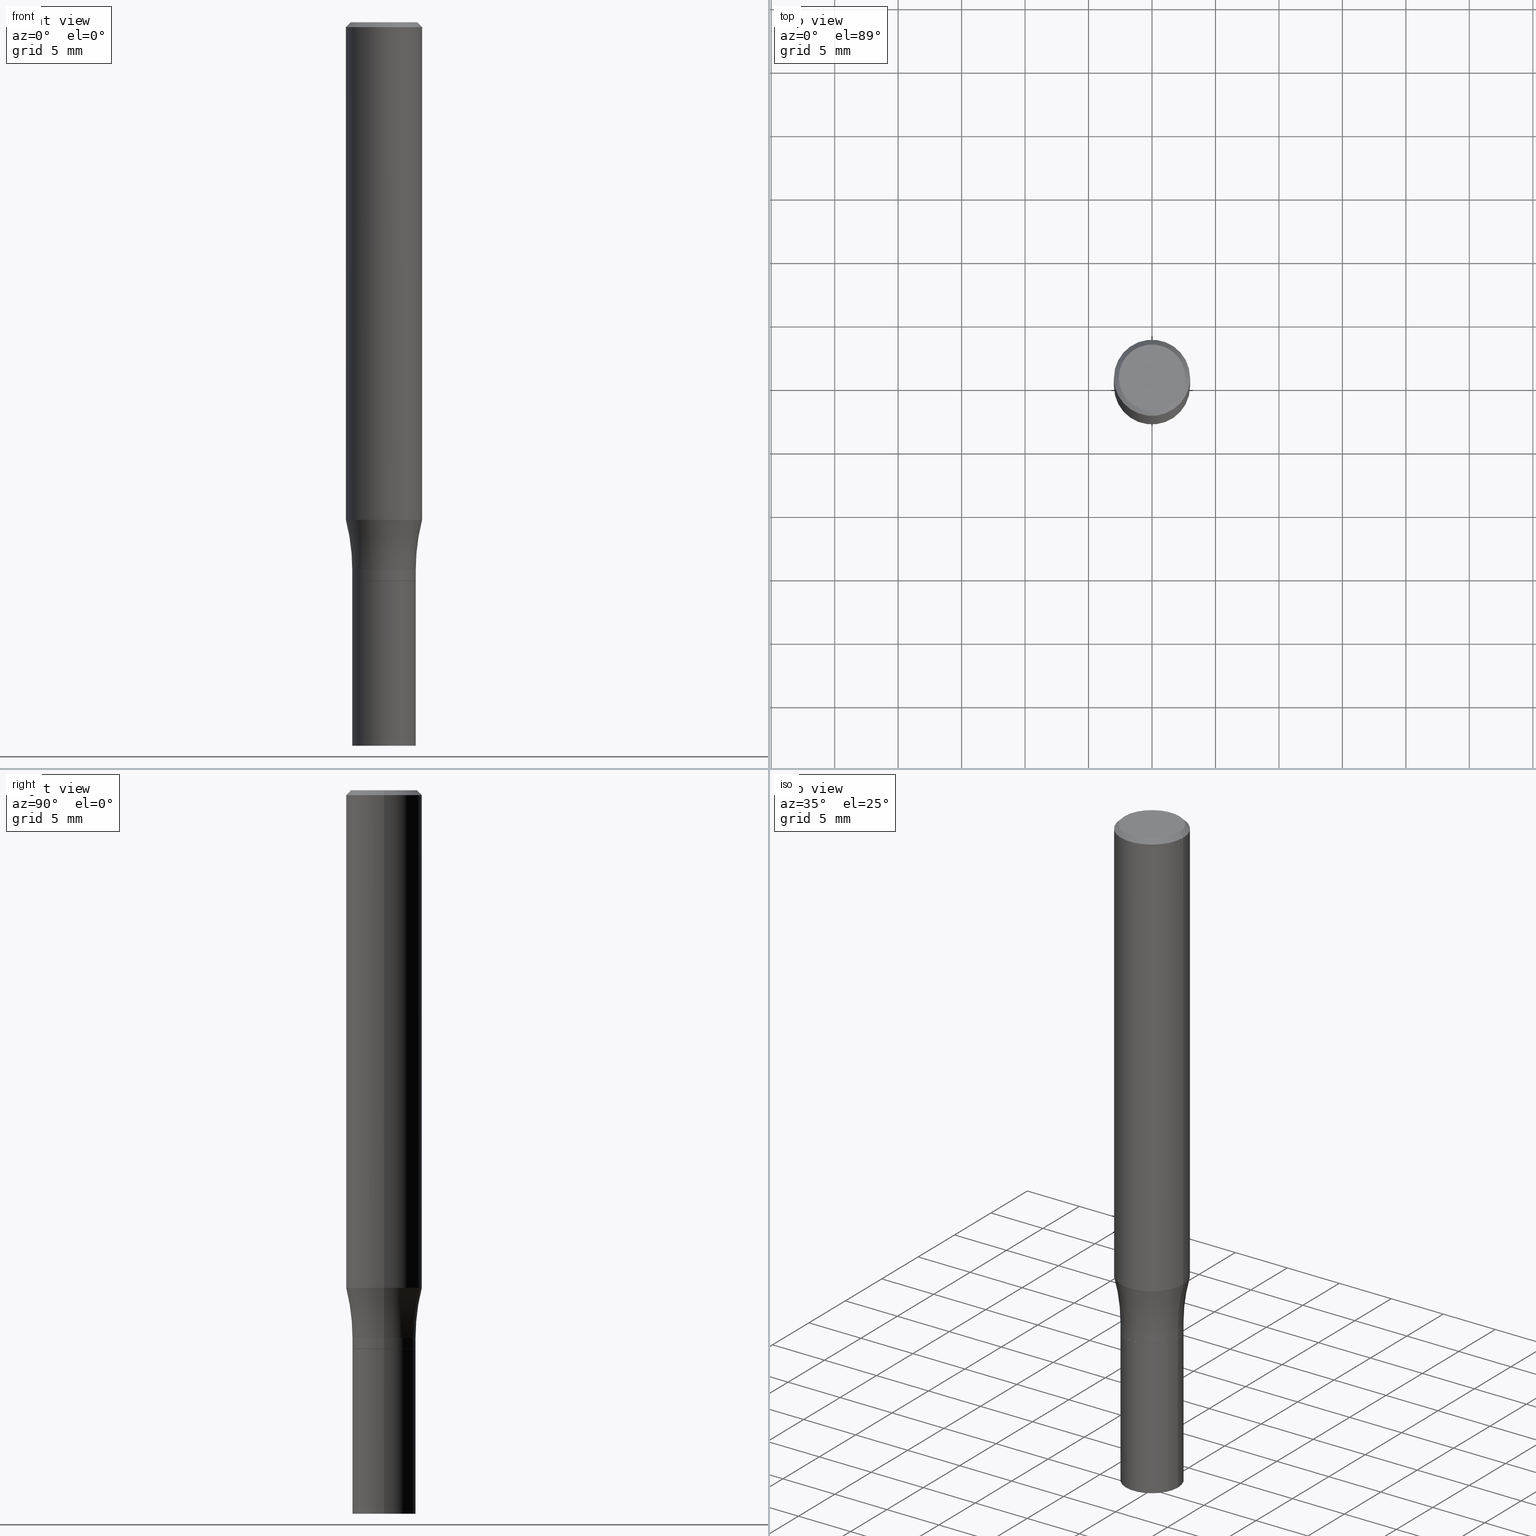
[diagram: canonical four-view strip — front | top / right | iso, engineering-drawing reading convention]
A machine part, canonical four-view strip (front | top / right | iso — engineering-drawing reading convention). The complete STEP part file that produces these views, byte-faithful:
ISO-10303-21;
HEADER;
FILE_DESCRIPTION (( 'STEP AP203' ),
    '1' );
FILE_NAME ('44892.STEP',
    '2024-03-04T15:29:05',
    ( '' ),
    ( '' ),
    'SwSTEP 2.0',
    'SolidWorks 2023',
    '' );
FILE_SCHEMA (( 'CONFIG_CONTROL_DESIGN' ));
ENDSEC;

DATA;
#1 = AXIS2_PLACEMENT_3D ( 'NONE', #345, #55, #167 ) ;
#2 =( NAMED_UNIT ( * ) PLANE_ANGLE_UNIT ( ) SI_UNIT ( $, .RADIAN. ) );
#3 = CARTESIAN_POINT ( 'NONE',  ( 0.1180999999999999966, -8.625970336194650129E-16, -0.01499999999999999944 ) ) ;
#4 = CARTESIAN_POINT ( 'NONE',  ( 0.09845000000000020401, -6.734020058226774501E-15, -1.731800000000000006 ) ) ;
#5 = PERSON_AND_ORGANIZATION ( #158, #229 ) ;
#6 = ADVANCED_FACE ( 'NONE', ( #19 ), #185, .T. ) ;
#7 = DIRECTION ( 'NONE',  ( -2.445468806185136597E-29, 3.491481338843145583E-15, 1.000000000000000000 ) ) ;
#8 = DIRECTION ( 'NONE',  ( -2.445468806185136597E-29, 3.491481338843145583E-15, 1.000000000000000000 ) ) ;
#9 = DIRECTION ( 'NONE',  ( 1.000000000000000000, -6.982962677686265133E-15, 0.000000000000000000 ) ) ;
#10 = CARTESIAN_POINT ( 'NONE',  ( -0.1180999999999999966, -4.550343100563697850E-15, -1.543612452267068891 ) ) ;
#11 = PERSON_AND_ORGANIZATION ( #158, #229 ) ;
#12 = PERSON_AND_ORGANIZATION ( #158, #229 ) ;
#13 = CONICAL_SURFACE ( 'NONE', #36, 0.1180999999999999966, 0.7853981633974600474 ) ;
#14 = CARTESIAN_POINT ( 'NONE',  ( 4.155096048589165620E-29, -5.932375942828387719E-15, -1.699099999999999833 ) ) ;
#15 = DIRECTION ( 'NONE',  ( 0.7071067811869459208, -2.468850131086429740E-15, 0.7071067811861491137 ) ) ;
#16 = AXIS2_PLACEMENT_3D ( 'NONE', #113, #293, #226 ) ;
#17 = ORIENTED_EDGE ( 'NONE', *, *, #365, .T. ) ;
#18 = ORIENTED_EDGE ( 'NONE', *, *, #173, .T. ) ;
#19 = FACE_OUTER_BOUND ( 'NONE', #316, .T. ) ;
#20 = CC_DESIGN_DATE_AND_TIME_ASSIGNMENT ( #194, #86, ( #123 ) ) ;
#21 = EDGE_CURVE ( 'NONE', #134, #309, #271, .T. ) ;
#22 = ORIENTED_EDGE ( 'NONE', *, *, #52, .T. ) ;
#23 = CALENDAR_DATE ( 2024, 4, 3 ) ;
#24 = EDGE_LOOP ( 'NONE', ( #380, #63 ) ) ;
#25 = PRODUCT_DEFINITION_FORMATION_WITH_SPECIFIED_SOURCE ( 'ANY', '', #300, .NOT_KNOWN. ) ;
#26 = AXIS2_PLACEMENT_3D ( 'NONE', #50, #243, #132 ) ;
#27 = DIRECTION ( 'NONE',  ( -2.445468806185136597E-29, 3.491481338843145583E-15, 1.000000000000000000 ) ) ;
#28 = FACE_OUTER_BOUND ( 'NONE', #49, .T. ) ;
#29 = ORIENTED_EDGE ( 'NONE', *, *, #71, .T. ) ;
#30 = ADVANCED_FACE ( 'NONE', ( #440 ), #308, .T. ) ;
#31 = DIRECTION ( 'NONE',  ( 1.000000000000000000, -6.982962677686269077E-15, 0.000000000000000000 ) ) ;
#32 = DIRECTION ( 'NONE',  ( 1.000000000000000000, -6.982962677686269866E-15, 0.000000000000000000 ) ) ;
#33 = CARTESIAN_POINT ( 'NONE',  ( 4.155096048589165620E-29, -5.932375942828387719E-15, -1.699099999999999833 ) ) ;
#34 = DIRECTION ( 'NONE',  ( -2.445468806185136597E-29, 3.491481338843145583E-15, 1.000000000000000000 ) ) ;
#35 = TOROIDAL_SURFACE ( 'NONE', #201, 0.7234499999999995934, 0.6250000000000000000 ) ;
#36 = AXIS2_PLACEMENT_3D ( 'NONE', #178, #186, #366 ) ;
#37 = ADVANCED_FACE ( 'NONE', ( #28 ), #93, .T. ) ;
#38 = CARTESIAN_POINT ( 'NONE',  ( 0.000000000000000000, 0.000000000000000000, 0.000000000000000000 ) ) ;
#39 = VERTEX_POINT ( 'NONE', #171 ) ;
#40 = DIRECTION ( 'NONE',  ( 1.000000000000000000, 0.000000000000000000, 0.000000000000000000 ) ) ;
#41 = EDGE_CURVE ( 'NONE', #301, #456, #90, .T. ) ;
#42 = FACE_OUTER_BOUND ( 'NONE', #197, .T. ) ;
#43 = DIRECTION ( 'NONE',  ( -2.445468806185136597E-29, 3.491481338843145583E-15, 1.000000000000000000 ) ) ;
#44 = CONICAL_SURFACE ( 'NONE', #390, 0.09795000000000000928, 0.7853981633980117172 ) ;
#45 = APPROVAL_STATUS ( 'not_yet_approved' ) ;
#46 = CARTESIAN_POINT ( 'NONE',  ( 0.09795000000000000928, -6.732274317557350631E-15, -1.732299999999999729 ) ) ;
#47 = ORIENTED_EDGE ( 'NONE', *, *, #149, .T. ) ;
#48 = SHAPE_DEFINITION_REPRESENTATION ( #275, #278 ) ;
#49 = EDGE_LOOP ( 'NONE', ( #382, #347, #193, #235 ) ) ;
#50 = CARTESIAN_POINT ( 'NONE',  ( 4.236285612954512392E-29, -6.048293123277981078E-15, -1.732299999999999951 ) ) ;
#51 = ORIENTED_EDGE ( 'NONE', *, *, #395, .T. ) ;
#52 = EDGE_CURVE ( 'NONE', #268, #463, #431, .T. ) ;
#53 = ORIENTED_EDGE ( 'NONE', *, *, #173, .F. ) ;
#54 = APPROVAL_ROLE ( '' ) ;
#55 = DIRECTION ( 'NONE',  ( 2.438088387897960049E-29, -3.491481338843145188E-15, -1.000000000000000000 ) ) ;
#56 = ORIENTED_EDGE ( 'NONE', *, *, #245, .F. ) ;
#57 = DIRECTION ( 'NONE',  ( 1.000000000000000000, -6.982962677686271444E-15, 0.000000000000000000 ) ) ;
#58 = VERTEX_POINT ( 'NONE', #249 ) ;
#59 = CIRCLE ( 'NONE', #425, 0.1180999999999999966 ) ;
#60 = AXIS2_PLACEMENT_3D ( 'NONE', #38, #76, #289 ) ;
#61 = CIRCLE ( 'NONE', #327, 0.09845000000000000973 ) ;
#62 = ORIENTED_EDGE ( 'NONE', *, *, #261, .T. ) ;
#63 = ORIENTED_EDGE ( 'NONE', *, *, #21, .F. ) ;
#64 = CIRCLE ( 'NONE', #329, 0.1031000000000000111 ) ;
#65 = DIRECTION ( 'NONE',  ( -2.445468806185136597E-29, 3.491481338843145583E-15, 1.000000000000000000 ) ) ;
#66 = AXIS2_PLACEMENT_3D ( 'NONE', #133, #384, #126 ) ;
#67 = ADVANCED_FACE ( 'NONE', ( #306 ), #195, .F. ) ;
#68 = DIRECTION ( 'NONE',  ( -2.438088387897960049E-29, 3.491481338843145188E-15, 1.000000000000000000 ) ) ;
#69 =( CONVERSION_BASED_UNIT ( 'INCH', #147 ) LENGTH_UNIT ( ) NAMED_UNIT ( #225 ) );
#70 = VECTOR ( 'NONE', #238, 39.37007874015748143 ) ;
#71 = EDGE_CURVE ( 'NONE', #134, #274, #311, .T. ) ;
#72 = DIRECTION ( 'NONE',  ( -2.445468806185136597E-29, 3.491481338843145583E-15, 1.000000000000000000 ) ) ;
#73 = APPLICATION_PROTOCOL_DEFINITION ( 'international standard', 'config_control_design', 1994, #339 ) ;
#74 = CARTESIAN_POINT ( 'NONE',  ( 0.000000000000000000, 0.000000000000000000, 0.000000000000000000 ) ) ;
#75 = DIRECTION ( 'NONE',  ( 2.438088387897960049E-29, -3.491481338843145188E-15, -1.000000000000000000 ) ) ;
#76 = DIRECTION ( 'NONE',  ( -2.445468806185136597E-29, 3.491481338843145583E-15, 1.000000000000000000 ) ) ;
#77 = CIRCLE ( 'NONE', #80, 0.09844999999999963503 ) ;
#78 = CC_DESIGN_APPROVAL ( #122, ( #191 ) ) ;
#79 = APPROVAL_STATUS ( 'not_yet_approved' ) ;
#80 = AXIS2_PLACEMENT_3D ( 'NONE', #391, #27, #57 ) ;
#81 = DIRECTION ( 'NONE',  ( 1.000000000000000000, -6.982962677686269077E-15, 0.000000000000000000 ) ) ;
#82 = CARTESIAN_POINT ( 'NONE',  ( 4.155096048589165620E-29, -5.932375942828387719E-15, -1.699099999999999833 ) ) ;
#83 = DATE_TIME_ROLE ( 'classification_date' ) ;
#84 = DIRECTION ( 'NONE',  ( -2.445468806185136877E-29, 3.491481338843145188E-15, 1.000000000000000000 ) ) ;
#85 = ADVANCED_FACE ( 'NONE', ( #394 ), #44, .T. ) ;
#86 = DATE_TIME_ROLE ( 'creation_date' ) ;
#87 = ORIENTED_EDGE ( 'NONE', *, *, #245, .T. ) ;
#88 = ADVANCED_FACE ( 'NONE', ( #42 ), #115, .F. ) ;
#89 = APPROVAL_PERSON_ORGANIZATION ( #125, #122, #273 ) ;
#90 = LINE ( 'NONE', #199, #70 ) ;
#91 = VERTEX_POINT ( 'NONE', #127 ) ;
#92 = ORIENTED_EDGE ( 'NONE', *, *, #303, .F. ) ;
#93 = CYLINDRICAL_SURFACE ( 'NONE', #280, 0.1181000000000000105 ) ;
#94 = ORIENTED_EDGE ( 'NONE', *, *, #71, .F. ) ;
#95 = ORIENTED_EDGE ( 'NONE', *, *, #325, .F. ) ;
#96 = CARTESIAN_POINT ( 'NONE',  ( 0.09795000000000000928, -6.732274317557350631E-15, -1.732299999999999729 ) ) ;
#97 = ORIENTED_EDGE ( 'NONE', *, *, #467, .T. ) ;
#98 = AXIS2_PLACEMENT_3D ( 'NONE', #14, #379, #189 ) ;
#99 = DIRECTION ( 'NONE',  ( -0.7071067811869459208, 7.493145998871794620E-15, 0.7071067811861491137 ) ) ;
#100 = VECTOR ( 'NONE', #99, 39.37007874015748143 ) ;
#101 = DIRECTION ( 'NONE',  ( 2.445468806185136597E-29, -3.491481338843145583E-15, -1.000000000000000000 ) ) ;
#102 = EDGE_LOOP ( 'NONE', ( #22, #352 ) ) ;
#103 = EDGE_CURVE ( 'NONE', #309, #124, #337, .T. ) ;
#104 = AXIS2_PLACEMENT_3D ( 'NONE', #427, #101, #207 ) ;
#105 = VECTOR ( 'NONE', #174, 39.37007874015748143 ) ;
#106 = DIRECTION ( 'NONE',  ( -2.445468806185136597E-29, 3.491481338843145583E-15, 1.000000000000000000 ) ) ;
#107 = DIRECTION ( 'NONE',  ( 1.000000000000000000, -6.982962677686265133E-15, 0.000000000000000000 ) ) ;
#108 = CYLINDRICAL_SURFACE ( 'NONE', #298, 0.09845000000000000973 ) ;
#109 = FACE_OUTER_BOUND ( 'NONE', #343, .T. ) ;
#110 = CARTESIAN_POINT ( 'NONE',  ( 3.774856100858060618E-29, -5.389494071496376836E-15, -1.543612452267068891 ) ) ;
#111 = APPLICATION_CONTEXT ( 'configuration controlled 3d designs of mechanical parts and assemblies' ) ;
#112 = CARTESIAN_POINT ( 'NONE',  ( 5.487876547960064752E-29, -7.835233272497902340E-15, -2.244099999999999984 ) ) ;
#113 = CARTESIAN_POINT ( 'NONE',  ( 5.494674114885027339E-29, -7.825498769767873813E-15, -2.244099999999999984 ) ) ;
#114 = DIRECTION ( 'NONE',  ( 1.000000000000000000, -6.982962677686265133E-15, 0.000000000000000000 ) ) ;
#115 = PLANE ( 'NONE',  #179 ) ;
#116 = DIRECTION ( 'NONE',  ( -1.000000000000000000, 7.105427357601001859E-15, 0.000000000000000000 ) ) ;
#117 = CARTESIAN_POINT ( 'NONE',  ( 4.235062878551419591E-29, -6.046547382608559574E-15, -1.731800000000000006 ) ) ;
#118 = APPROVAL_DATE_TIME ( #305, #122 ) ;
#119 = MANIFOLD_SOLID_BREP ( 'Body-Move/Copy2[2]', #211 ) ;
#120 = CALENDAR_DATE ( 2024, 4, 3 ) ;
#121 = LINE ( 'NONE', #414, #230 ) ;
#122 = APPROVAL ( #45, 'UNSPECIFIED' ) ;
#123 = PRODUCT_DEFINITION ( 'UNKNOWN', '', #25, #212 ) ;
#124 = VERTEX_POINT ( 'NONE', #4 ) ;
#125 = PERSON_AND_ORGANIZATION ( #158, #229 ) ;
#126 = DIRECTION ( 'NONE',  ( 1.000000000000000000, -6.982962677686269077E-15, 0.000000000000000000 ) ) ;
#127 = CARTESIAN_POINT ( 'NONE',  ( 0.09845000000000000973, -8.522705948116114900E-15, -2.244099999999999984 ) ) ;
#128 = EDGE_LOOP ( 'NONE', ( #248, #168 ) ) ;
#129 =( GEOMETRIC_REPRESENTATION_CONTEXT ( 3 ) GLOBAL_UNCERTAINTY_ASSIGNED_CONTEXT ( ( #453 ) ) GLOBAL_UNIT_ASSIGNED_CONTEXT ( ( #69, #2, #445 ) ) REPRESENTATION_CONTEXT ( 'NONE', 'WORKASPACE' ) );
#130 = ORIENTED_EDGE ( 'NONE', *, *, #261, .F. ) ;
#131 = EDGE_CURVE ( 'NONE', #58, #301, #310, .T. ) ;
#132 = DIRECTION ( 'NONE',  ( 1.000000000000000000, -6.982962677686265133E-15, 0.000000000000000000 ) ) ;
#133 = CARTESIAN_POINT ( 'NONE',  ( 4.236285612954511832E-29, -6.048293123277980289E-15, -1.732299999999999729 ) ) ;
#134 = VERTEX_POINT ( 'NONE', #224 ) ;
#135 = EDGE_LOOP ( 'NONE', ( #172, #307, #276, #130 ) ) ;
#136 = CIRCLE ( 'NONE', #468, 0.6250000000000000000 ) ;
#137 = DIRECTION ( 'NONE',  ( 1.000000000000000000, -6.982962677686265133E-15, 0.000000000000000000 ) ) ;
#138 = LOCAL_TIME ( 10, 29, 5.000000000000000000, #452 ) ;
#139 = DIRECTION ( 'NONE',  ( 1.000000000000000000, -6.982962677686266711E-15, 0.000000000000000000 ) ) ;
#140 = EDGE_CURVE ( 'NONE', #301, #58, #285, .T. ) ;
#141 = DIRECTION ( 'NONE',  ( 1.000000000000000000, -6.982962677686271444E-15, 0.000000000000000000 ) ) ;
#142 = AXIS2_PLACEMENT_3D ( 'NONE', #117, #282, #32 ) ;
#143 = CC_DESIGN_SECURITY_CLASSIFICATION ( #191, ( #25 ) ) ;
#144 = AXIS2_PLACEMENT_3D ( 'NONE', #74, #7, #294 ) ;
#145 = FACE_OUTER_BOUND ( 'NONE', #465, .T. ) ;
#146 = DIRECTION ( 'NONE',  ( 1.000000000000000000, -6.982962677686266711E-15, 4.876176775795935793E-29 ) ) ;
#147 = LENGTH_MEASURE_WITH_UNIT ( LENGTH_MEASURE( 0.02539999999999999897 ), #263 );
#148 = CARTESIAN_POINT ( 'NONE',  ( 0.1181000000000000105, -8.246878922347482626E-16, 5.758764772215001141E-30 ) ) ;
#149 = EDGE_CURVE ( 'NONE', #460, #456, #177, .T. ) ;
#150 = CARTESIAN_POINT ( 'NONE',  ( 4.235062878551419591E-29, -6.046547382608559574E-15, -1.731800000000000006 ) ) ;
#151 = CALENDAR_DATE ( 2024, 4, 3 ) ;
#152 = CARTESIAN_POINT ( 'NONE',  ( -0.09845000000000000973, 6.995293233558187021E-16, -4.842691596355954742E-30 ) ) ;
#153 = AXIS2_PLACEMENT_3D ( 'NONE', #405, #359, #146 ) ;
#154 = CC_DESIGN_APPROVAL ( #290, ( #25 ) ) ;
#155 = CLOSED_SHELL ( 'NONE', ( #184, #272, #374, #67 ) ) ;
#156 = PERSON_AND_ORGANIZATION ( #158, #229 ) ;
#157 = AXIS2_PLACEMENT_3D ( 'NONE', #110, #221, #369 ) ;
#158 = PERSON ( 'UNSPECIFIED', 'UNSPECIFIED', 'UNSPECIFIED', ('UNSPECIFIED'), ('UNSPECIFIED'), ('UNSPECIFIED') ) ;
#159 = ORIENTED_EDGE ( 'NONE', *, *, #176, .T. ) ;
#160 = APPROVAL_ROLE ( '' ) ;
#161 = ORIENTED_EDGE ( 'NONE', *, *, #461, .F. ) ;
#162 = ORIENTED_EDGE ( 'NONE', *, *, #210, .F. ) ;
#163 = DIRECTION ( 'NONE',  ( 0.7071067811865557884, -7.319954787623282867E-15, -0.7071067811865392461 ) ) ;
#164 = EDGE_LOOP ( 'NONE', ( #94, #419, #389, #161 ) ) ;
#165 = DATE_AND_TIME ( #151, #381 ) ;
#166 = AXIS2_PLACEMENT_3D ( 'NONE', #150, #106, #255 ) ;
#167 = DIRECTION ( 'NONE',  ( -1.000000000000000000, 6.982962677686265922E-15, -4.876176775795935793E-29 ) ) ;
#168 = ORIENTED_EDGE ( 'NONE', *, *, #433, .F. ) ;
#169 = CIRCLE ( 'NONE', #180, 0.1031000000000000111 ) ;
#170 = ORIENTED_EDGE ( 'NONE', *, *, #283, .T. ) ;
#171 = CARTESIAN_POINT ( 'NONE',  ( 0.1031000000000000111, -7.849571885948555664E-16, -3.585672687244918133E-16 ) ) ;
#172 = ORIENTED_EDGE ( 'NONE', *, *, #426, .T. ) ;
#173 = EDGE_CURVE ( 'NONE', #124, #450, #422, .T. ) ;
#174 = DIRECTION ( 'NONE',  ( -2.445468806185136877E-29, 3.491481338843145188E-15, 1.000000000000000000 ) ) ;
#175 = DIRECTION ( 'NONE',  ( -2.445468806185136597E-29, 3.491481338843145583E-15, 1.000000000000000000 ) ) ;
#176 = EDGE_CURVE ( 'NONE', #58, #450, #136, .T. ) ;
#177 = LINE ( 'NONE', #324, #350 ) ;
#178 = CARTESIAN_POINT ( 'NONE',  ( 3.668203209277705088E-31, -5.237222008264718399E-17, -0.01499999999999999944 ) ) ;
#179 = AXIS2_PLACEMENT_3D ( 'NONE', #406, #75, #455 ) ;
#180 = AXIS2_PLACEMENT_3D ( 'NONE', #441, #65, #315 ) ;
#181 = DIRECTION ( 'NONE',  ( -2.445468806185136597E-29, 3.491481338843145583E-15, 1.000000000000000000 ) ) ;
#182 = DIRECTION ( 'NONE',  ( -2.445468806185136877E-29, 3.491481338843145188E-15, 1.000000000000000000 ) ) ;
#183 = MECHANICAL_CONTEXT ( 'NONE', #339, 'mechanical' ) ;
#184 = ADVANCED_FACE ( 'NONE', ( #266 ), #108, .T. ) ;
#185 = CONICAL_SURFACE ( 'NONE', #66, 0.09795000000000000928, 0.7853981633980117172 ) ;
#186 = DIRECTION ( 'NONE',  ( 2.445468806185136597E-29, -3.491481338843145583E-15, -1.000000000000000000 ) ) ;
#187 = APPLICATION_PROTOCOL_DEFINITION ( 'international standard', 'config_control_design', 1994, #111 ) ;
#188 = EDGE_CURVE ( 'NONE', #58, #423, #218, .T. ) ;
#189 = DIRECTION ( 'NONE',  ( 1.000000000000000000, -6.982962677686266711E-15, 4.883557194083112901E-29 ) ) ;
#190 = AXIS2_PLACEMENT_3D ( 'NONE', #407, #43, #215 ) ;
#191 = SECURITY_CLASSIFICATION ( '', '', #344 ) ;
#192 = EDGE_LOOP ( 'NONE', ( #239, #240, #200, #385 ) ) ;
#193 = ORIENTED_EDGE ( 'NONE', *, *, #395, .F. ) ;
#194 = DATE_AND_TIME ( #418, #320 ) ;
#195 = PLANE ( 'NONE',  #1 ) ;
#196 = ORIENTED_EDGE ( 'NONE', *, *, #103, .F. ) ;
#197 = EDGE_LOOP ( 'NONE', ( #392, #97 ) ) ;
#198 = PERSON_AND_ORGANIZATION_ROLE ( 'creator' ) ;
#199 = CARTESIAN_POINT ( 'NONE',  ( -0.1181000000000000105, 8.391509709326783943E-16, -5.809262341591044484E-30 ) ) ;
#200 = ORIENTED_EDGE ( 'NONE', *, *, #323, .T. ) ;
#201 = AXIS2_PLACEMENT_3D ( 'NONE', #33, #430, #321 ) ;
#202 = ORIENTED_EDGE ( 'NONE', *, *, #323, .F. ) ;
#203 = CIRCLE ( 'NONE', #142, 0.09845000000000020401 ) ;
#204 = EDGE_LOOP ( 'NONE', ( #87, #17, #236, #53 ) ) ;
#205 = DIRECTION ( 'NONE',  ( -2.445468806185136597E-29, 3.491481338843145583E-15, 1.000000000000000000 ) ) ;
#206 = CARTESIAN_POINT ( 'NONE',  ( 3.774856100858060618E-29, -5.389494071496376836E-15, -1.543612452267068891 ) ) ;
#207 = DIRECTION ( 'NONE',  ( -1.000000000000000000, 6.982962677686266711E-15, 0.000000000000000000 ) ) ;
#208 = ORIENTED_EDGE ( 'NONE', *, *, #140, .T. ) ;
#209 = CC_DESIGN_DATE_AND_TIME_ASSIGNMENT ( #448, #83, ( #191 ) ) ;
#210 = EDGE_CURVE ( 'NONE', #281, #463, #232, .T. ) ;
#211 = CLOSED_SHELL ( 'NONE', ( #37, #30, #6, #361, #257, #250, #408, #85, #223, #88, #397, #444 ) ) ;
#212 = DESIGN_CONTEXT ( 'detailed design', #111, 'design' ) ;
#213 = CARTESIAN_POINT ( 'NONE',  ( 0.000000000000000000, 0.000000000000000000, 0.000000000000000000 ) ) ;
#214 = CARTESIAN_POINT ( 'NONE',  ( 5.487876547960064752E-29, -7.835233272497902340E-15, -2.244099999999999984 ) ) ;
#215 = DIRECTION ( 'NONE',  ( 1.000000000000000000, -6.982962677686266711E-15, 0.000000000000000000 ) ) ;
#216 = VECTOR ( 'NONE', #364, 39.37007874015748143 ) ;
#217 = TOROIDAL_SURFACE ( 'NONE', #98, 0.7234499999999995934, 0.6250000000000000000 ) ;
#218 = LINE ( 'NONE', #148, #367 ) ;
#219 = EDGE_CURVE ( 'NONE', #450, #304, #265, .T. ) ;
#220 = CARTESIAN_POINT ( 'NONE',  ( 0.000000000000000000, 0.000000000000000000, 0.000000000000000000 ) ) ;
#221 = DIRECTION ( 'NONE',  ( -2.445468806185136597E-29, 3.491481338843145583E-15, 1.000000000000000000 ) ) ;
#222 = CARTESIAN_POINT ( 'NONE',  ( 0.1180999999999999966, -8.625970336194650129E-16, -0.01499999999999999944 ) ) ;
#223 = ADVANCED_FACE ( 'NONE', ( #357 ), #317, .F. ) ;
#224 = CARTESIAN_POINT ( 'NONE',  ( -0.09795000000000000928, -5.349667286426851087E-15, -1.732299999999999729 ) ) ;
#225 = DIMENSIONAL_EXPONENTS ( 1.000000000000000000, 0.000000000000000000, 0.000000000000000000, 0.000000000000000000, 0.000000000000000000, 0.000000000000000000, 0.000000000000000000 ) ;
#226 = DIRECTION ( 'NONE',  ( 1.000000000000000000, -6.982962677686265922E-15, 4.876176775795935793E-29 ) ) ;
#227 = DIRECTION ( 'NONE',  ( 1.000000000000000000, -6.982962677686266711E-15, 4.876176775795935793E-29 ) ) ;
#228 = CARTESIAN_POINT ( 'NONE',  ( 0.09844999999999963503, -6.619848618446598701E-15, -1.699099999999999833 ) ) ;
#229 = ORGANIZATION ( 'UNSPECIFIED', 'UNSPECIFIED', '' ) ;
#230 = VECTOR ( 'NONE', #84, 39.37007874015748143 ) ;
#231 = PERSON_AND_ORGANIZATION ( #158, #229 ) ;
#232 = LINE ( 'NONE', #152, #336 ) ;
#233 = PERSON_AND_ORGANIZATION ( #158, #229 ) ;
#234 = CARTESIAN_POINT ( 'NONE',  ( 0.09845000000000000973, -6.735765798896194427E-15, -1.732299999999999951 ) ) ;
#235 = ORIENTED_EDGE ( 'NONE', *, *, #188, .F. ) ;
#236 = ORIENTED_EDGE ( 'NONE', *, *, #219, .F. ) ;
#237 = EDGE_CURVE ( 'NONE', #301, #304, #287, .T. ) ;
#238 = DIRECTION ( 'NONE',  ( -2.445468806185136877E-29, 3.491481338843145188E-15, 1.000000000000000000 ) ) ;
#239 = ORIENTED_EDGE ( 'NONE', *, *, #140, .F. ) ;
#240 = ORIENTED_EDGE ( 'NONE', *, *, #237, .T. ) ;
#241 = DATE_AND_TIME ( #375, #400 ) ;
#242 = PRODUCT_RELATED_PRODUCT_CATEGORY ( 'detail', '', ( #300 ) ) ;
#243 = DIRECTION ( 'NONE',  ( -2.445468806185136597E-29, 3.491481338843145583E-15, 1.000000000000000000 ) ) ;
#244 = ORIENTED_EDGE ( 'NONE', *, *, #365, .F. ) ;
#245 = EDGE_CURVE ( 'NONE', #124, #274, #203, .T. ) ;
#246 = ORIENTED_EDGE ( 'NONE', *, *, #342, .F. ) ;
#247 = CIRCLE ( 'NONE', #399, 0.09845000000000000973 ) ;
#248 = ORIENTED_EDGE ( 'NONE', *, *, #426, .F. ) ;
#249 = CARTESIAN_POINT ( 'NONE',  ( 0.1180999999999999966, -6.214181963731125887E-15, -1.543612452267068891 ) ) ;
#250 = ADVANCED_FACE ( 'NONE', ( #437 ), #35, .F. ) ;
#251 = ORIENTED_EDGE ( 'NONE', *, *, #433, .T. ) ;
#252 = LINE ( 'NONE', #3, #459 ) ;
#253 = CARTESIAN_POINT ( 'NONE',  ( 4.236285612954512392E-29, -6.048293123277981078E-15, -1.732299999999999951 ) ) ;
#254 = AXIS2_PLACEMENT_3D ( 'NONE', #332, #412, #81 ) ;
#255 = DIRECTION ( 'NONE',  ( 1.000000000000000000, -6.982962677686269866E-15, 0.000000000000000000 ) ) ;
#256 = CARTESIAN_POINT ( 'NONE',  ( 0.000000000000000000, 0.000000000000000000, 0.000000000000000000 ) ) ;
#257 = ADVANCED_FACE ( 'NONE', ( #435 ), #217, .F. ) ;
#258 = DIRECTION ( 'NONE',  ( 1.000000000000000000, -6.982962677686265922E-15, 4.883331232093008327E-29 ) ) ;
#259 = AXIS2_PLACEMENT_3D ( 'NONE', #82, #377, #141 ) ;
#260 = CC_DESIGN_PERSON_AND_ORGANIZATION_ASSIGNMENT ( #233, #378, ( #191 ) ) ;
#261 = EDGE_CURVE ( 'NONE', #91, #268, #121, .T. ) ;
#262 = PLANE ( 'NONE',  #16 ) ;
#263 =( LENGTH_UNIT ( ) NAMED_UNIT ( * ) SI_UNIT ( $, .METRE. ) );
#264 = PERSON_AND_ORGANIZATION_ROLE ( 'creator' ) ;
#265 = CIRCLE ( 'NONE', #259, 0.09844999999999963503 ) ;
#266 = FACE_OUTER_BOUND ( 'NONE', #135, .T. ) ;
#267 = AXIS2_PLACEMENT_3D ( 'NONE', #253, #68, #466 ) ;
#268 = VERTEX_POINT ( 'NONE', #234 ) ;
#269 = CARTESIAN_POINT ( 'NONE',  ( 4.236285612954511832E-29, -6.048293123277980289E-15, -1.732299999999999729 ) ) ;
#270 = ORIENTED_EDGE ( 'NONE', *, *, #371, .F. ) ;
#271 = CIRCLE ( 'NONE', #458, 0.09795000000000000928 ) ;
#272 = ADVANCED_FACE ( 'NONE', ( #447 ), #262, .F. ) ;
#273 = APPROVAL_ROLE ( '' ) ;
#274 = VERTEX_POINT ( 'NONE', #402 ) ;
#275 = PRODUCT_DEFINITION_SHAPE ( 'NONE', 'NONE',  #123 ) ;
#276 = ORIENTED_EDGE ( 'NONE', *, *, #52, .F. ) ;
#277 = ORIENTED_EDGE ( 'NONE', *, *, #342, .T. ) ;
#278 = ADVANCED_BREP_SHAPE_REPRESENTATION ( '44892', ( #446, #119, #438 ), #129 ) ;
#279 = DIRECTION ( 'NONE',  ( -2.445468806185136597E-29, 3.491481338843145583E-15, 1.000000000000000000 ) ) ;
#280 = AXIS2_PLACEMENT_3D ( 'NONE', #415, #354, #424 ) ;
#281 = VERTEX_POINT ( 'NONE', #372 ) ;
#282 = DIRECTION ( 'NONE',  ( -2.445468806185136597E-29, 3.491481338843145583E-15, 1.000000000000000000 ) ) ;
#283 = EDGE_CURVE ( 'NONE', #309, #134, #449, .T. ) ;
#284 = DIRECTION ( 'NONE',  ( -0.7071067811865557884, 2.468850131082343835E-15, -0.7071067811865392461 ) ) ;
#285 = CIRCLE ( 'NONE', #451, 0.1181000000000000383 ) ;
#286 = APPROVAL_PERSON_ORGANIZATION ( #12, #290, #54 ) ;
#287 = CIRCLE ( 'NONE', #326, 0.6250000000000000000 ) ;
#288 = DIRECTION ( 'NONE',  ( 1.000000000000000000, -6.982962677686269077E-15, 0.000000000000000000 ) ) ;
#289 = DIRECTION ( 'NONE',  ( 1.000000000000000000, -6.982962677686267499E-15, 4.876176775795936353E-29 ) ) ;
#290 = APPROVAL ( #299, 'UNSPECIFIED' ) ;
#291 = CC_DESIGN_PERSON_AND_ORGANIZATION_ASSIGNMENT ( #5, #292, ( #300 ) ) ;
#292 = PERSON_AND_ORGANIZATION_ROLE ( 'design_owner' ) ;
#293 = DIRECTION ( 'NONE',  ( -2.438088387897960049E-29, 3.491481338843145188E-15, 1.000000000000000000 ) ) ;
#294 = DIRECTION ( 'NONE',  ( 1.000000000000000000, -6.982962677686266711E-15, 4.876176775795935793E-29 ) ) ;
#295 = CARTESIAN_POINT ( 'NONE',  ( -0.09844999999999991258, 6.995293233558180118E-16, -4.842691596355949838E-30 ) ) ;
#296 = COORDINATED_UNIVERSAL_TIME_OFFSET ( 5, 0, .BEHIND. ) ;
#297 = CIRCLE ( 'NONE', #190, 0.1180999999999999966 ) ;
#298 = AXIS2_PLACEMENT_3D ( 'NONE', #256, #8, #398 ) ;
#299 = APPROVAL_STATUS ( 'not_yet_approved' ) ;
#300 = PRODUCT ( '44892', '44892', '', ( #183 ) ) ;
#301 = VERTEX_POINT ( 'NONE', #10 ) ;
#302 = APPROVAL_DATE_TIME ( #165, #421 ) ;
#303 = EDGE_CURVE ( 'NONE', #456, #423, #59, .T. ) ;
#304 = VERTEX_POINT ( 'NONE', #434 ) ;
#305 = DATE_AND_TIME ( #120, #138 ) ;
#306 = FACE_OUTER_BOUND ( 'NONE', #102, .T. ) ;
#307 = ORIENTED_EDGE ( 'NONE', *, *, #210, .T. ) ;
#308 = CONICAL_SURFACE ( 'NONE', #104, 0.1180999999999999966, 0.7853981633974600474 ) ;
#309 = VERTEX_POINT ( 'NONE', #96 ) ;
#310 = CIRCLE ( 'NONE', #157, 0.1181000000000000383 ) ;
#311 = LINE ( 'NONE', #462, #100 ) ;
#312 = EDGE_LOOP ( 'NONE', ( #244, #355, #18, #202 ) ) ;
#313 = ORIENTED_EDGE ( 'NONE', *, *, #149, .F. ) ;
#314 = CARTESIAN_POINT ( 'NONE',  ( 4.236285612954511832E-29, -6.048293123277980289E-15, -1.732299999999999729 ) ) ;
#315 = DIRECTION ( 'NONE',  ( 1.000000000000000000, -6.982962677686265922E-15, 4.883331232093008327E-29 ) ) ;
#316 = EDGE_LOOP ( 'NONE', ( #170, #29, #56, #196 ) ) ;
#317 = PLANE ( 'NONE',  #267 ) ;
#318 = FACE_OUTER_BOUND ( 'NONE', #417, .T. ) ;
#319 = CARTESIAN_POINT ( 'NONE',  ( 0.7234499999999995934, -1.098420029200051540E-14, -1.699099999999999833 ) ) ;
#320 = LOCAL_TIME ( 10, 29, 5.000000000000000000, #383 ) ;
#321 = DIRECTION ( 'NONE',  ( 1.000000000000000000, -6.982962677686266711E-15, 4.883557194083112901E-29 ) ) ;
#322 = CARTESIAN_POINT ( 'NONE',  ( 4.236285612954512392E-29, -6.048293123277981078E-15, -1.732299999999999951 ) ) ;
#323 = EDGE_CURVE ( 'NONE', #304, #450, #77, .T. ) ;
#324 = CARTESIAN_POINT ( 'NONE',  ( -0.1180999999999999966, 7.723156721521009862E-16, -0.01499999999999999944 ) ) ;
#325 = EDGE_CURVE ( 'NONE', #463, #268, #247, .T. ) ;
#326 = AXIS2_PLACEMENT_3D ( 'NONE', #403, #328, #116 ) ;
#327 = AXIS2_PLACEMENT_3D ( 'NONE', #112, #443, #107 ) ;
#328 = DIRECTION ( 'NONE',  ( 7.105427357601001859E-15, 1.000000000000000000, -3.491481338843145583E-15 ) ) ;
#329 = AXIS2_PLACEMENT_3D ( 'NONE', #370, #181, #258 ) ;
#330 = CYLINDRICAL_SURFACE ( 'NONE', #60, 0.1181000000000000105 ) ;
#331 = CYLINDRICAL_SURFACE ( 'NONE', #393, 0.09844999999999991258 ) ;
#332 = CARTESIAN_POINT ( 'NONE',  ( 4.236285612954511832E-29, -6.048293123277980289E-15, -1.732299999999999729 ) ) ;
#333 = DIRECTION ( 'NONE',  ( -6.982962677686266711E-15, -1.000000000000000000, 3.491481338843145583E-15 ) ) ;
#334 = COORDINATED_UNIVERSAL_TIME_OFFSET ( 5, 0, .BEHIND. ) ;
#335 = DIRECTION ( 'NONE',  ( -2.445468806185136877E-29, 3.491481338843145188E-15, 1.000000000000000000 ) ) ;
#336 = VECTOR ( 'NONE', #335, 39.37007874015748143 ) ;
#337 = LINE ( 'NONE', #46, #410 ) ;
#338 = APPROVAL_PERSON_ORGANIZATION ( #11, #421, #160 ) ;
#339 = APPLICATION_CONTEXT ( 'configuration controlled 3d designs of mechanical parts and assemblies' ) ;
#340 = COORDINATED_UNIVERSAL_TIME_OFFSET ( 5, 0, .BEHIND. ) ;
#341 = CC_DESIGN_PERSON_AND_ORGANIZATION_ASSIGNMENT ( #156, #348, ( #25 ) ) ;
#342 = EDGE_CURVE ( 'NONE', #39, #423, #252, .T. ) ;
#343 = EDGE_LOOP ( 'NONE', ( #416, #208, #346, #92 ) ) ;
#344 = SECURITY_CLASSIFICATION_LEVEL ( 'unclassified' ) ;
#345 = CARTESIAN_POINT ( 'NONE',  ( 6.874726756182552572E-16, 0.09844999999999397289, -1.732300000000000173 ) ) ;
#346 = ORIENTED_EDGE ( 'NONE', *, *, #188, .T. ) ;
#347 = ORIENTED_EDGE ( 'NONE', *, *, #41, .T. ) ;
#348 = PERSON_AND_ORGANIZATION_ROLE ( 'design_supplier' ) ;
#349 = ORIENTED_EDGE ( 'NONE', *, *, #303, .T. ) ;
#350 = VECTOR ( 'NONE', #284, 39.37007874015748143 ) ;
#351 = CC_DESIGN_APPROVAL ( #421, ( #123 ) ) ;
#352 = ORIENTED_EDGE ( 'NONE', *, *, #325, .T. ) ;
#353 = CIRCLE ( 'NONE', #413, 0.09845000000000000973 ) ;
#354 = DIRECTION ( 'NONE',  ( -2.445468806185136597E-29, 3.491481338843145583E-15, 1.000000000000000000 ) ) ;
#355 = ORIENTED_EDGE ( 'NONE', *, *, #461, .T. ) ;
#356 = CARTESIAN_POINT ( 'NONE',  ( 0.09844999999999991258, -6.874726756182123629E-16, 4.800596035771094310E-30 ) ) ;
#357 = FACE_OUTER_BOUND ( 'NONE', #24, .T. ) ;
#358 = CYLINDRICAL_SURFACE ( 'NONE', #153, 0.09845000000000000973 ) ;
#359 = DIRECTION ( 'NONE',  ( -2.445468806185136597E-29, 3.491481338843145583E-15, 1.000000000000000000 ) ) ;
#360 = CC_DESIGN_PERSON_AND_ORGANIZATION_ASSIGNMENT ( #386, #264, ( #123 ) ) ;
#361 = ADVANCED_FACE ( 'NONE', ( #376 ), #331, .T. ) ;
#362 = DIRECTION ( 'NONE',  ( 1.000000000000000000, -6.982962677686270655E-15, 0.000000000000000000 ) ) ;
#363 = DIRECTION ( 'NONE',  ( -2.445468806185136597E-29, 3.491481338843145583E-15, 1.000000000000000000 ) ) ;
#364 = DIRECTION ( 'NONE',  ( -2.445468806185136877E-29, 3.491481338843145188E-15, 1.000000000000000000 ) ) ;
#365 = EDGE_CURVE ( 'NONE', #274, #304, #409, .T. ) ;
#366 = DIRECTION ( 'NONE',  ( -1.000000000000000000, 6.982962677686266711E-15, 0.000000000000000000 ) ) ;
#367 = VECTOR ( 'NONE', #182, 39.37007874015748143 ) ;
#368 = DIRECTION ( 'NONE',  ( 0.000000000000000000, 0.000000000000000000, 1.000000000000000000 ) ) ;
#369 = DIRECTION ( 'NONE',  ( 1.000000000000000000, -6.982962677686270655E-15, 0.000000000000000000 ) ) ;
#370 = CARTESIAN_POINT ( 'NONE',  ( 8.768650705847610599E-45, -1.251930927471537114E-30, -3.585672687244970888E-16 ) ) ;
#371 = EDGE_CURVE ( 'NONE', #460, #39, #169, .T. ) ;
#372 = CARTESIAN_POINT ( 'NONE',  ( -0.09845000000000000973, -6.242233874532123993E-15, -2.244099999999999984 ) ) ;
#373 = CARTESIAN_POINT ( 'NONE',  ( -0.09845000000000000973, -6.242233874532123993E-15, -1.732299999999999951 ) ) ;
#374 = ADVANCED_FACE ( 'NONE', ( #318 ), #358, .T. ) ;
#375 = CALENDAR_DATE ( 2024, 4, 3 ) ;
#376 = FACE_OUTER_BOUND ( 'NONE', #204, .T. ) ;
#377 = DIRECTION ( 'NONE',  ( -2.445468806185136597E-29, 3.491481338843145583E-15, 1.000000000000000000 ) ) ;
#378 = PERSON_AND_ORGANIZATION_ROLE ( 'classification_officer' ) ;
#379 = DIRECTION ( 'NONE',  ( -2.445468806185136597E-29, 3.491481338843145583E-15, 1.000000000000000000 ) ) ;
#380 = ORIENTED_EDGE ( 'NONE', *, *, #283, .F. ) ;
#381 = LOCAL_TIME ( 10, 29, 5.000000000000000000, #340 ) ;
#382 = ORIENTED_EDGE ( 'NONE', *, *, #131, .T. ) ;
#383 = COORDINATED_UNIVERSAL_TIME_OFFSET ( 5, 0, .BEHIND. ) ;
#384 = DIRECTION ( 'NONE',  ( -2.445468806185136597E-29, 3.491481338843145583E-15, 1.000000000000000000 ) ) ;
#385 = ORIENTED_EDGE ( 'NONE', *, *, #176, .F. ) ;
#386 = PERSON_AND_ORGANIZATION ( #158, #229 ) ;
#387 = ORIENTED_EDGE ( 'NONE', *, *, #131, .F. ) ;
#388 = ORIENTED_EDGE ( 'NONE', *, *, #467, .F. ) ;
#389 = ORIENTED_EDGE ( 'NONE', *, *, #103, .T. ) ;
#390 = AXIS2_PLACEMENT_3D ( 'NONE', #314, #205, #31 ) ;
#391 = CARTESIAN_POINT ( 'NONE',  ( 4.155096048589165620E-29, -5.932375942828387719E-15, -1.699099999999999833 ) ) ;
#392 = ORIENTED_EDGE ( 'NONE', *, *, #371, .T. ) ;
#393 = AXIS2_PLACEMENT_3D ( 'NONE', #213, #72, #227 ) ;
#394 = FACE_OUTER_BOUND ( 'NONE', #164, .T. ) ;
#395 = EDGE_CURVE ( 'NONE', #423, #456, #297, .T. ) ;
#396 = CIRCLE ( 'NONE', #166, 0.09845000000000020401 ) ;
#397 = ADVANCED_FACE ( 'NONE', ( #145 ), #13, .T. ) ;
#398 = DIRECTION ( 'NONE',  ( 1.000000000000000000, -6.982962677686266711E-15, 4.876176775795935793E-29 ) ) ;
#399 = AXIS2_PLACEMENT_3D ( 'NONE', #322, #436, #137 ) ;
#400 = LOCAL_TIME ( 10, 29, 5.000000000000000000, #296 ) ;
#401 = CARTESIAN_POINT ( 'NONE',  ( -0.1031000000000000111, 7.461295621107768549E-16, -3.585672687245022657E-16 ) ) ;
#402 = CARTESIAN_POINT ( 'NONE',  ( -0.09845000000000020401, -5.289932339362654747E-15, -1.731800000000000006 ) ) ;
#403 = CARTESIAN_POINT ( 'NONE',  ( -0.7234499999999995934, -7.919545209719458135E-16, -1.699099999999999833 ) ) ;
#404 = CYLINDRICAL_SURFACE ( 'NONE', #144, 0.09844999999999991258 ) ;
#405 = CARTESIAN_POINT ( 'NONE',  ( 0.000000000000000000, 0.000000000000000000, 0.000000000000000000 ) ) ;
#406 = CARTESIAN_POINT ( 'NONE',  ( 7.199434520694541042E-16, 0.1031000000000000111, -5.392553603969768538E-16 ) ) ;
#407 = CARTESIAN_POINT ( 'NONE',  ( 3.668203209277705088E-31, -5.237222008264718399E-17, -0.01499999999999999944 ) ) ;
#408 = ADVANCED_FACE ( 'NONE', ( #439 ), #404, .T. ) ;
#409 = LINE ( 'NONE', #295, #216 ) ;
#410 = VECTOR ( 'NONE', #15, 39.37007874015748143 ) ;
#411 = LOCAL_TIME ( 10, 29, 5.000000000000000000, #334 ) ;
#412 = DIRECTION ( 'NONE',  ( -2.445468806185136597E-29, 3.491481338843145583E-15, 1.000000000000000000 ) ) ;
#413 = AXIS2_PLACEMENT_3D ( 'NONE', #214, #363, #9 ) ;
#414 = CARTESIAN_POINT ( 'NONE',  ( 0.09845000000000000973, -6.874726756182130531E-16, 4.800596035771099214E-30 ) ) ;
#415 = CARTESIAN_POINT ( 'NONE',  ( 0.000000000000000000, 0.000000000000000000, 0.000000000000000000 ) ) ;
#416 = ORIENTED_EDGE ( 'NONE', *, *, #41, .F. ) ;
#417 = EDGE_LOOP ( 'NONE', ( #162, #251, #62, #95 ) ) ;
#418 = CALENDAR_DATE ( 2024, 4, 3 ) ;
#419 = ORIENTED_EDGE ( 'NONE', *, *, #21, .T. ) ;
#420 = ORIENTED_EDGE ( 'NONE', *, *, #237, .F. ) ;
#421 = APPROVAL ( #79, 'UNSPECIFIED' ) ;
#422 = LINE ( 'NONE', #356, #105 ) ;
#423 = VERTEX_POINT ( 'NONE', #222 ) ;
#424 = DIRECTION ( 'NONE',  ( 1.000000000000000000, -6.982962677686267499E-15, 4.876176775795936353E-29 ) ) ;
#425 = AXIS2_PLACEMENT_3D ( 'NONE', #428, #175, #139 ) ;
#426 = EDGE_CURVE ( 'NONE', #91, #281, #353, .T. ) ;
#427 = CARTESIAN_POINT ( 'NONE',  ( 3.668203209277705088E-31, -5.237222008264718399E-17, -0.01499999999999999944 ) ) ;
#428 = CARTESIAN_POINT ( 'NONE',  ( 3.668203209277705088E-31, -5.237222008264718399E-17, -0.01499999999999999944 ) ) ;
#429 = ORIENTED_EDGE ( 'NONE', *, *, #219, .T. ) ;
#430 = DIRECTION ( 'NONE',  ( -2.445468806185136597E-29, 3.491481338843145583E-15, 1.000000000000000000 ) ) ;
#431 = CIRCLE ( 'NONE', #26, 0.09845000000000000973 ) ;
#432 = CC_DESIGN_PERSON_AND_ORGANIZATION_ASSIGNMENT ( #231, #198, ( #25 ) ) ;
#433 = EDGE_CURVE ( 'NONE', #281, #91, #61, .T. ) ;
#434 = CARTESIAN_POINT ( 'NONE',  ( -0.09844999999999963503, -4.891594860018134518E-15, -1.699099999999999833 ) ) ;
#435 = FACE_OUTER_BOUND ( 'NONE', #192, .T. ) ;
#436 = DIRECTION ( 'NONE',  ( -2.445468806185136597E-29, 3.491481338843145583E-15, 1.000000000000000000 ) ) ;
#437 = FACE_OUTER_BOUND ( 'NONE', #457, .T. ) ;
#438 = AXIS2_PLACEMENT_3D ( 'NONE', #220, #368, #40 ) ;
#439 = FACE_OUTER_BOUND ( 'NONE', #312, .T. ) ;
#440 = FACE_OUTER_BOUND ( 'NONE', #464, .T. ) ;
#441 = CARTESIAN_POINT ( 'NONE',  ( 8.768650705847610599E-45, -1.251930927471537114E-30, -3.585672687244970888E-16 ) ) ;
#442 = CARTESIAN_POINT ( 'NONE',  ( -0.1180999999999999966, 7.723156721521009862E-16, -0.01499999999999999944 ) ) ;
#443 = DIRECTION ( 'NONE',  ( -2.445468806185136597E-29, 3.491481338843145583E-15, 1.000000000000000000 ) ) ;
#444 = ADVANCED_FACE ( 'NONE', ( #109 ), #330, .T. ) ;
#445 =( NAMED_UNIT ( * ) SI_UNIT ( $, .STERADIAN. ) SOLID_ANGLE_UNIT ( ) );
#446 = MANIFOLD_SOLID_BREP ( 'Body-Move/Copy2[1]', #155 ) ;
#447 = FACE_OUTER_BOUND ( 'NONE', #128, .T. ) ;
#448 = DATE_AND_TIME ( #23, #411 ) ;
#449 = CIRCLE ( 'NONE', #254, 0.09795000000000000928 ) ;
#450 = VERTEX_POINT ( 'NONE', #228 ) ;
#451 = AXIS2_PLACEMENT_3D ( 'NONE', #206, #34, #362 ) ;
#452 = COORDINATED_UNIVERSAL_TIME_OFFSET ( 5, 0, .BEHIND. ) ;
#453 = UNCERTAINTY_MEASURE_WITH_UNIT (LENGTH_MEASURE( 1.000000000000000082E-05 ), #69, 'distance_accuracy_value', 'NONE');
#454 = APPROVAL_DATE_TIME ( #241, #290 ) ;
#455 = DIRECTION ( 'NONE',  ( -1.000000000000000000, 6.982962677686265922E-15, -4.876176775795935793E-29 ) ) ;
#456 = VERTEX_POINT ( 'NONE', #442 ) ;
#457 = EDGE_LOOP ( 'NONE', ( #420, #387, #159, #429 ) ) ;
#458 = AXIS2_PLACEMENT_3D ( 'NONE', #269, #279, #288 ) ;
#459 = VECTOR ( 'NONE', #163, 39.37007874015748143 ) ;
#460 = VERTEX_POINT ( 'NONE', #401 ) ;
#461 = EDGE_CURVE ( 'NONE', #274, #124, #396, .T. ) ;
#462 = CARTESIAN_POINT ( 'NONE',  ( -0.09795000000000000928, -5.352316513600962288E-15, -1.732299999999999729 ) ) ;
#463 = VERTEX_POINT ( 'NONE', #373 ) ;
#464 = EDGE_LOOP ( 'NONE', ( #388, #277, #51, #313 ) ) ;
#465 = EDGE_LOOP ( 'NONE', ( #246, #270, #47, #349 ) ) ;
#466 = DIRECTION ( 'NONE',  ( 1.000000000000000000, -6.982962677686265922E-15, 4.876176775795935793E-29 ) ) ;
#467 = EDGE_CURVE ( 'NONE', #39, #460, #64, .T. ) ;
#468 = AXIS2_PLACEMENT_3D ( 'NONE', #319, #333, #114 ) ;
ENDSEC;
END-ISO-10303-21;
